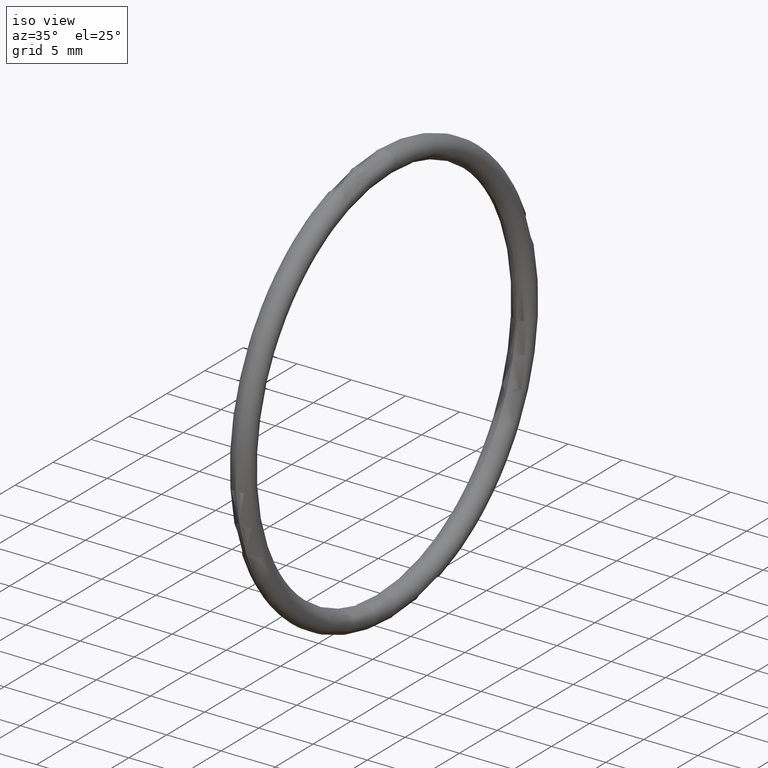
[diagram: clean part render]
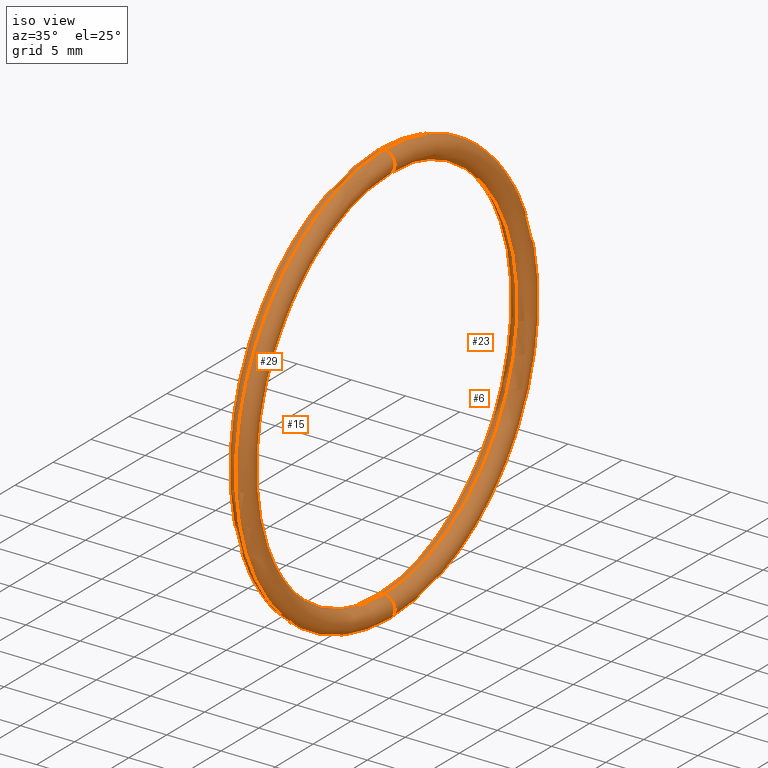
[diagram: same view with one multi-face feature highlighted, each face labeled with its STEP entity id]
A machine part, iso view. The highlighted faces form ONE feature: a constant-radius fillet chain: 4 tangent blend faces with common blend radius 1.016 mm. The faces share edges in the B-rep.
Their STEP definitions:
[1] entity #15 (Torus):
#1 = EDGE_CURVE ( 'NONE', #30, #25, #34, .T. ) ;
#2 = ORIENTED_EDGE ( 'NONE', *, *, #8, .F. ) ;
#3 = ORIENTED_EDGE ( 'NONE', *, *, #1, .T. ) ;
#4 = ORIENTED_EDGE ( 'NONE', *, *, #11, .T. ) ;
#8 = EDGE_CURVE ( 'NONE', #30, #33, #43, .T. ) ;
#9 = EDGE_LOOP ( 'NONE', ( #26, #2, #3, #4 ) ) ;
#10 = EDGE_CURVE ( 'NONE', #33, #13, #47, .T. ) ;
#11 = EDGE_CURVE ( 'NONE', #25, #13, #194, .T. ) ;
#13 = VERTEX_POINT ( 'NONE', #178 ) ;
#15 = ADVANCED_FACE ( 'NONE', ( #177 ), #162, .T. ) ;
#25 = VERTEX_POINT ( 'NONE', #133 ) ;
#26 = ORIENTED_EDGE ( 'NONE', *, *, #10, .F. ) ;
#30 = VERTEX_POINT ( 'NONE', #72 ) ;
#33 = VERTEX_POINT ( 'NONE', #127 ) ;
#34 = CIRCLE ( 'NONE', #175, 0.6899999999999998400 ) ;
#42 = DIRECTION ( 'NONE',  ( 0.0000000000000000000, -1.224646799147351000E-016, 1.000000000000000000 ) ) ;
#43 = CIRCLE ( 'NONE', #124, 0.03999999999999998000 ) ;
#44 = CARTESIAN_POINT ( 'NONE',  ( 0.1000000000000000900, 0.0000000000000000000, 0.0000000000000000000 ) ) ;
#45 = DIRECTION ( 'NONE',  ( -1.000000000000000000, 0.0000000000000000000, 0.0000000000000000000 ) ) ;
#46 = AXIS2_PLACEMENT_3D ( 'NONE', #44, #45, #131 ) ;
#47 = CIRCLE ( 'NONE', #46, 0.7699999999999998000 ) ;
#55 = CARTESIAN_POINT ( 'NONE',  ( 0.1000000000000000900, 0.0000000000000000000, 0.7299999999999998700 ) ) ;
#72 = CARTESIAN_POINT ( 'NONE',  ( 0.1000000000000000900, 8.450062914116736900E-017, -0.6899999999999998400 ) ) ;
#122 = DIRECTION ( 'NONE',  ( 0.0000000000000000000, 1.000000000000000000, 1.224646799147353200E-016 ) ) ;
#123 = CARTESIAN_POINT ( 'NONE',  ( 0.1000000000000000900, 8.939921633775677100E-017, -0.7299999999999998700 ) ) ;
#124 = AXIS2_PLACEMENT_3D ( 'NONE', #123, #122, #42 ) ;
#127 = CARTESIAN_POINT ( 'NONE',  ( 0.1000000000000000900, 9.429780353434617300E-017, -0.7699999999999996800 ) ) ;
#130 = DIRECTION ( 'NONE',  ( 0.0000000000000000000, 0.0000000000000000000, -1.000000000000000000 ) ) ;
#131 = DIRECTION ( 'NONE',  ( 0.0000000000000000000, 0.0000000000000000000, 1.000000000000000000 ) ) ;
#133 = CARTESIAN_POINT ( 'NONE',  ( 0.1000000000000000900, 0.0000000000000000000, 0.6899999999999998400 ) ) ;
#154 = DIRECTION ( 'NONE',  ( 0.0000000000000000000, 0.0000000000000000000, 1.000000000000000000 ) ) ;
#155 = DIRECTION ( 'NONE',  ( -1.000000000000000000, 0.0000000000000000000, 0.0000000000000000000 ) ) ;
#156 = CARTESIAN_POINT ( 'NONE',  ( 0.1000000000000000900, 0.0000000000000000000, 0.0000000000000000000 ) ) ;
#158 = CARTESIAN_POINT ( 'NONE',  ( 0.1000000000000000900, 0.0000000000000000000, 0.0000000000000000000 ) ) ;
#159 = DIRECTION ( 'NONE',  ( -1.000000000000000000, 0.0000000000000000000, 0.0000000000000000000 ) ) ;
#160 = DIRECTION ( 'NONE',  ( 0.0000000000000000000, 0.0000000000000000000, 1.000000000000000000 ) ) ;
#162 = TOROIDAL_SURFACE ( 'NONE', #176, 0.7299999999999998700, 0.03999999999999997300 ) ;
#175 = AXIS2_PLACEMENT_3D ( 'NONE', #158, #159, #160 ) ;
#176 = AXIS2_PLACEMENT_3D ( 'NONE', #156, #155, #154 ) ;
#177 = FACE_OUTER_BOUND ( 'NONE', #9, .T. ) ;
#178 = CARTESIAN_POINT ( 'NONE',  ( 0.1000000000000000900, 0.0000000000000000000, 0.7699999999999996800 ) ) ;
#192 = DIRECTION ( 'NONE',  ( 0.0000000000000000000, -1.000000000000000000, 0.0000000000000000000 ) ) ;
#193 = AXIS2_PLACEMENT_3D ( 'NONE', #55, #192, #130 ) ;
#194 = CIRCLE ( 'NONE', #193, 0.03999999999999998000 ) ;
[2] entity #23 (Torus):
#8 = EDGE_CURVE ( 'NONE', #30, #33, #43, .T. ) ;
#11 = EDGE_CURVE ( 'NONE', #25, #13, #194, .T. ) ;
#13 = VERTEX_POINT ( 'NONE', #178 ) ;
#14 = ORIENTED_EDGE ( 'NONE', *, *, #8, .T. ) ;
#16 = ORIENTED_EDGE ( 'NONE', *, *, #37, .T. ) ;
#19 = ORIENTED_EDGE ( 'NONE', *, *, #39, .F. ) ;
#20 = ORIENTED_EDGE ( 'NONE', *, *, #11, .F. ) ;
#23 = ADVANCED_FACE ( 'NONE', ( #157 ), #132, .T. ) ;
#24 = EDGE_LOOP ( 'NONE', ( #19, #20, #16, #14 ) ) ;
#25 = VERTEX_POINT ( 'NONE', #133 ) ;
#30 = VERTEX_POINT ( 'NONE', #72 ) ;
#33 = VERTEX_POINT ( 'NONE', #127 ) ;
#37 = EDGE_CURVE ( 'NONE', #25, #30, #167, .T. ) ;
#39 = EDGE_CURVE ( 'NONE', #13, #33, #181, .T. ) ;
#42 = DIRECTION ( 'NONE',  ( 0.0000000000000000000, -1.224646799147351000E-016, 1.000000000000000000 ) ) ;
#43 = CIRCLE ( 'NONE', #124, 0.03999999999999998000 ) ;
#55 = CARTESIAN_POINT ( 'NONE',  ( 0.1000000000000000900, 0.0000000000000000000, 0.7299999999999998700 ) ) ;
#72 = CARTESIAN_POINT ( 'NONE',  ( 0.1000000000000000900, 8.450062914116736900E-017, -0.6899999999999998400 ) ) ;
#122 = DIRECTION ( 'NONE',  ( 0.0000000000000000000, 1.000000000000000000, 1.224646799147353200E-016 ) ) ;
#123 = CARTESIAN_POINT ( 'NONE',  ( 0.1000000000000000900, 8.939921633775677100E-017, -0.7299999999999998700 ) ) ;
#124 = AXIS2_PLACEMENT_3D ( 'NONE', #123, #122, #42 ) ;
#127 = CARTESIAN_POINT ( 'NONE',  ( 0.1000000000000000900, 9.429780353434617300E-017, -0.7699999999999996800 ) ) ;
#130 = DIRECTION ( 'NONE',  ( 0.0000000000000000000, 0.0000000000000000000, -1.000000000000000000 ) ) ;
#132 = TOROIDAL_SURFACE ( 'NONE', #179, 0.7299999999999998700, 0.03999999999999997300 ) ;
#133 = CARTESIAN_POINT ( 'NONE',  ( 0.1000000000000000900, 0.0000000000000000000, 0.6899999999999998400 ) ) ;
#157 = FACE_OUTER_BOUND ( 'NONE', #24, .T. ) ;
#163 = DIRECTION ( 'NONE',  ( 0.0000000000000000000, 0.0000000000000000000, 1.000000000000000000 ) ) ;
#164 = DIRECTION ( 'NONE',  ( -1.000000000000000000, 0.0000000000000000000, 0.0000000000000000000 ) ) ;
#165 = CARTESIAN_POINT ( 'NONE',  ( 0.1000000000000000900, 0.0000000000000000000, 0.0000000000000000000 ) ) ;
#166 = AXIS2_PLACEMENT_3D ( 'NONE', #165, #164, #163 ) ;
#167 = CIRCLE ( 'NONE', #166, 0.6899999999999998400 ) ;
#168 = CARTESIAN_POINT ( 'NONE',  ( 0.1000000000000000900, 0.0000000000000000000, 0.0000000000000000000 ) ) ;
#171 = DIRECTION ( 'NONE',  ( 0.0000000000000000000, 0.0000000000000000000, 1.000000000000000000 ) ) ;
#172 = DIRECTION ( 'NONE',  ( -1.000000000000000000, 0.0000000000000000000, 0.0000000000000000000 ) ) ;
#173 = AXIS2_PLACEMENT_3D ( 'NONE', #168, #172, #171 ) ;
#178 = CARTESIAN_POINT ( 'NONE',  ( 0.1000000000000000900, 0.0000000000000000000, 0.7699999999999996800 ) ) ;
#179 = AXIS2_PLACEMENT_3D ( 'NONE', #180, #187, #186 ) ;
#180 = CARTESIAN_POINT ( 'NONE',  ( 0.1000000000000000900, 0.0000000000000000000, 0.0000000000000000000 ) ) ;
#181 = CIRCLE ( 'NONE', #173, 0.7699999999999998000 ) ;
#186 = DIRECTION ( 'NONE',  ( 0.0000000000000000000, 0.0000000000000000000, 1.000000000000000000 ) ) ;
#187 = DIRECTION ( 'NONE',  ( -1.000000000000000000, 0.0000000000000000000, 0.0000000000000000000 ) ) ;
#192 = DIRECTION ( 'NONE',  ( 0.0000000000000000000, -1.000000000000000000, 0.0000000000000000000 ) ) ;
#193 = AXIS2_PLACEMENT_3D ( 'NONE', #55, #192, #130 ) ;
#194 = CIRCLE ( 'NONE', #193, 0.03999999999999998000 ) ;
[3] entity #6 (Torus):
#6 = ADVANCED_FACE ( 'NONE', ( #170 ), #161, .T. ) ;
#7 = EDGE_LOOP ( 'NONE', ( #40, #38, #18, #36 ) ) ;
#12 = EDGE_CURVE ( 'NONE', #13, #25, #129, .T. ) ;
#13 = VERTEX_POINT ( 'NONE', #178 ) ;
#18 = ORIENTED_EDGE ( 'NONE', *, *, #31, .T. ) ;
#25 = VERTEX_POINT ( 'NONE', #133 ) ;
#30 = VERTEX_POINT ( 'NONE', #72 ) ;
#31 = EDGE_CURVE ( 'NONE', #33, #30, #106, .T. ) ;
#33 = VERTEX_POINT ( 'NONE', #127 ) ;
#36 = ORIENTED_EDGE ( 'NONE', *, *, #37, .F. ) ;
#37 = EDGE_CURVE ( 'NONE', #25, #30, #167, .T. ) ;
#38 = ORIENTED_EDGE ( 'NONE', *, *, #39, .T. ) ;
#39 = EDGE_CURVE ( 'NONE', #13, #33, #181, .T. ) ;
#40 = ORIENTED_EDGE ( 'NONE', *, *, #12, .F. ) ;
#41 = AXIS2_PLACEMENT_3D ( 'NONE', #169, #174, #48 ) ;
#48 = DIRECTION ( 'NONE',  ( 0.0000000000000000000, 0.0000000000000000000, 1.000000000000000000 ) ) ;
#72 = CARTESIAN_POINT ( 'NONE',  ( 0.1000000000000000900, 8.450062914116736900E-017, -0.6899999999999998400 ) ) ;
#103 = DIRECTION ( 'NONE',  ( 0.0000000000000000000, 1.000000000000000000, 1.224646799147353200E-016 ) ) ;
#104 = CARTESIAN_POINT ( 'NONE',  ( 0.1000000000000000900, 8.939921633775677100E-017, -0.7299999999999998700 ) ) ;
#105 = AXIS2_PLACEMENT_3D ( 'NONE', #104, #103, #128 ) ;
#106 = CIRCLE ( 'NONE', #105, 0.03999999999999998000 ) ;
#127 = CARTESIAN_POINT ( 'NONE',  ( 0.1000000000000000900, 9.429780353434617300E-017, -0.7699999999999996800 ) ) ;
#128 = DIRECTION ( 'NONE',  ( 0.0000000000000000000, -1.224646799147351000E-016, 1.000000000000000000 ) ) ;
#129 = CIRCLE ( 'NONE', #191, 0.03999999999999998000 ) ;
#133 = CARTESIAN_POINT ( 'NONE',  ( 0.1000000000000000900, 0.0000000000000000000, 0.6899999999999998400 ) ) ;
#161 = TOROIDAL_SURFACE ( 'NONE', #41, 0.7299999999999998700, 0.03999999999999997300 ) ;
#163 = DIRECTION ( 'NONE',  ( 0.0000000000000000000, 0.0000000000000000000, 1.000000000000000000 ) ) ;
#164 = DIRECTION ( 'NONE',  ( -1.000000000000000000, 0.0000000000000000000, 0.0000000000000000000 ) ) ;
#165 = CARTESIAN_POINT ( 'NONE',  ( 0.1000000000000000900, 0.0000000000000000000, 0.0000000000000000000 ) ) ;
#166 = AXIS2_PLACEMENT_3D ( 'NONE', #165, #164, #163 ) ;
#167 = CIRCLE ( 'NONE', #166, 0.6899999999999998400 ) ;
#168 = CARTESIAN_POINT ( 'NONE',  ( 0.1000000000000000900, 0.0000000000000000000, 0.0000000000000000000 ) ) ;
#169 = CARTESIAN_POINT ( 'NONE',  ( 0.1000000000000000900, 0.0000000000000000000, 0.0000000000000000000 ) ) ;
#170 = FACE_OUTER_BOUND ( 'NONE', #7, .T. ) ;
#171 = DIRECTION ( 'NONE',  ( 0.0000000000000000000, 0.0000000000000000000, 1.000000000000000000 ) ) ;
#172 = DIRECTION ( 'NONE',  ( -1.000000000000000000, 0.0000000000000000000, 0.0000000000000000000 ) ) ;
#173 = AXIS2_PLACEMENT_3D ( 'NONE', #168, #172, #171 ) ;
#174 = DIRECTION ( 'NONE',  ( -1.000000000000000000, 0.0000000000000000000, 0.0000000000000000000 ) ) ;
#178 = CARTESIAN_POINT ( 'NONE',  ( 0.1000000000000000900, 0.0000000000000000000, 0.7699999999999996800 ) ) ;
#181 = CIRCLE ( 'NONE', #173, 0.7699999999999998000 ) ;
#188 = DIRECTION ( 'NONE',  ( 0.0000000000000000000, 0.0000000000000000000, -1.000000000000000000 ) ) ;
#189 = DIRECTION ( 'NONE',  ( 0.0000000000000000000, -1.000000000000000000, 0.0000000000000000000 ) ) ;
#190 = CARTESIAN_POINT ( 'NONE',  ( 0.1000000000000000900, 0.0000000000000000000, 0.7299999999999998700 ) ) ;
#191 = AXIS2_PLACEMENT_3D ( 'NONE', #190, #189, #188 ) ;
[4] entity #29 (Torus):
#1 = EDGE_CURVE ( 'NONE', #30, #25, #34, .T. ) ;
#10 = EDGE_CURVE ( 'NONE', #33, #13, #47, .T. ) ;
#12 = EDGE_CURVE ( 'NONE', #13, #25, #129, .T. ) ;
#13 = VERTEX_POINT ( 'NONE', #178 ) ;
#17 = ORIENTED_EDGE ( 'NONE', *, *, #1, .F. ) ;
#21 = ORIENTED_EDGE ( 'NONE', *, *, #10, .T. ) ;
#22 = ORIENTED_EDGE ( 'NONE', *, *, #12, .T. ) ;
#25 = VERTEX_POINT ( 'NONE', #133 ) ;
#28 = EDGE_LOOP ( 'NONE', ( #32, #21, #22, #17 ) ) ;
#29 = ADVANCED_FACE ( 'NONE', ( #185 ), #54, .T. ) ;
#30 = VERTEX_POINT ( 'NONE', #72 ) ;
#31 = EDGE_CURVE ( 'NONE', #33, #30, #106, .T. ) ;
#32 = ORIENTED_EDGE ( 'NONE', *, *, #31, .F. ) ;
#33 = VERTEX_POINT ( 'NONE', #127 ) ;
#34 = CIRCLE ( 'NONE', #175, 0.6899999999999998400 ) ;
#44 = CARTESIAN_POINT ( 'NONE',  ( 0.1000000000000000900, 0.0000000000000000000, 0.0000000000000000000 ) ) ;
#45 = DIRECTION ( 'NONE',  ( -1.000000000000000000, 0.0000000000000000000, 0.0000000000000000000 ) ) ;
#46 = AXIS2_PLACEMENT_3D ( 'NONE', #44, #45, #131 ) ;
#47 = CIRCLE ( 'NONE', #46, 0.7699999999999998000 ) ;
#54 = TOROIDAL_SURFACE ( 'NONE', #71, 0.7299999999999998700, 0.03999999999999997300 ) ;
#68 = DIRECTION ( 'NONE',  ( 0.0000000000000000000, 0.0000000000000000000, 1.000000000000000000 ) ) ;
#69 = DIRECTION ( 'NONE',  ( -1.000000000000000000, 0.0000000000000000000, 0.0000000000000000000 ) ) ;
#70 = CARTESIAN_POINT ( 'NONE',  ( 0.1000000000000000900, 0.0000000000000000000, 0.0000000000000000000 ) ) ;
#71 = AXIS2_PLACEMENT_3D ( 'NONE', #70, #69, #68 ) ;
#72 = CARTESIAN_POINT ( 'NONE',  ( 0.1000000000000000900, 8.450062914116736900E-017, -0.6899999999999998400 ) ) ;
#103 = DIRECTION ( 'NONE',  ( 0.0000000000000000000, 1.000000000000000000, 1.224646799147353200E-016 ) ) ;
#104 = CARTESIAN_POINT ( 'NONE',  ( 0.1000000000000000900, 8.939921633775677100E-017, -0.7299999999999998700 ) ) ;
#105 = AXIS2_PLACEMENT_3D ( 'NONE', #104, #103, #128 ) ;
#106 = CIRCLE ( 'NONE', #105, 0.03999999999999998000 ) ;
#127 = CARTESIAN_POINT ( 'NONE',  ( 0.1000000000000000900, 9.429780353434617300E-017, -0.7699999999999996800 ) ) ;
#128 = DIRECTION ( 'NONE',  ( 0.0000000000000000000, -1.224646799147351000E-016, 1.000000000000000000 ) ) ;
#129 = CIRCLE ( 'NONE', #191, 0.03999999999999998000 ) ;
#131 = DIRECTION ( 'NONE',  ( 0.0000000000000000000, 0.0000000000000000000, 1.000000000000000000 ) ) ;
#133 = CARTESIAN_POINT ( 'NONE',  ( 0.1000000000000000900, 0.0000000000000000000, 0.6899999999999998400 ) ) ;
#158 = CARTESIAN_POINT ( 'NONE',  ( 0.1000000000000000900, 0.0000000000000000000, 0.0000000000000000000 ) ) ;
#159 = DIRECTION ( 'NONE',  ( -1.000000000000000000, 0.0000000000000000000, 0.0000000000000000000 ) ) ;
#160 = DIRECTION ( 'NONE',  ( 0.0000000000000000000, 0.0000000000000000000, 1.000000000000000000 ) ) ;
#175 = AXIS2_PLACEMENT_3D ( 'NONE', #158, #159, #160 ) ;
#178 = CARTESIAN_POINT ( 'NONE',  ( 0.1000000000000000900, 0.0000000000000000000, 0.7699999999999996800 ) ) ;
#185 = FACE_OUTER_BOUND ( 'NONE', #28, .T. ) ;
#188 = DIRECTION ( 'NONE',  ( 0.0000000000000000000, 0.0000000000000000000, -1.000000000000000000 ) ) ;
#189 = DIRECTION ( 'NONE',  ( 0.0000000000000000000, -1.000000000000000000, 0.0000000000000000000 ) ) ;
#190 = CARTESIAN_POINT ( 'NONE',  ( 0.1000000000000000900, 0.0000000000000000000, 0.7299999999999998700 ) ) ;
#191 = AXIS2_PLACEMENT_3D ( 'NONE', #190, #189, #188 ) ;